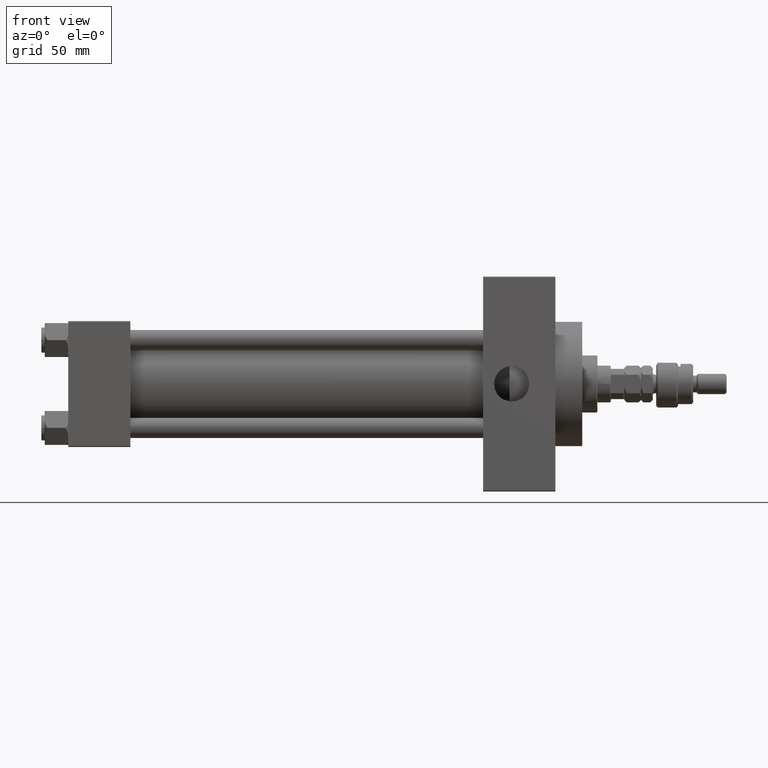
[diagram: clean part render]
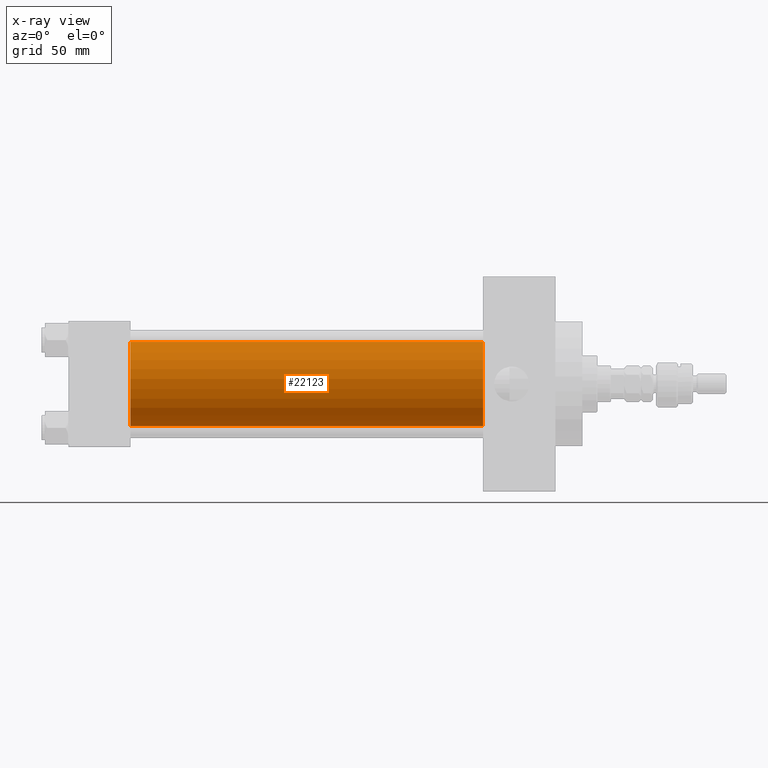
[diagram: x-ray — body ghosted, one internal face saturated and labeled with its STEP entity id]
A machine part, front view, then the same camera in x-ray: the body is ghosted and one INTERNAL B-rep face — a face not visible from any outside direction — is saturated and labeled: STEP entity #22123.
In plain terms, the highlighted cylindrical surface (partial cylindrical patch) has radius 25 mm, axis along (-1, -0, -0).
Its self-contained STEP definition (entity closure, byte-faithful):
#902 = VERTEX_POINT ( 'NONE', #38079 ) ;
#3272 = CARTESIAN_POINT ( 'NONE',  ( 37.00000000000000000, 4.595317839031724996E-16, -25.00000000000000000 ) ) ;
#4310 = LINE ( 'NONE', #28897, #35388 ) ;
#6537 = EDGE_CURVE ( 'NONE', #902, #26072, #9023, .T. ) ;
#8520 = AXIS2_PLACEMENT_3D ( 'NONE', #38954, #47695, #51662 ) ;
#9023 = CIRCLE ( 'NONE', #37656, 25.00000000000000000 ) ;
#13538 = CARTESIAN_POINT ( 'NONE',  ( 247.0000000000000000, 4.595317839031724996E-16, -25.00000000000000000 ) ) ;
#13609 = DIRECTION ( 'NONE',  ( 0.000000000000000000, 0.000000000000000000, 1.000000000000000000 ) ) ;
#18106 = CARTESIAN_POINT ( 'NONE',  ( 247.0000000000000000, -2.602085213965210642E-15, 0.000000000000000000 ) ) ;
#22123 = ADVANCED_FACE ( 'NONE', ( #25242 ), #33964, .F. ) ;
#22994 = DIRECTION ( 'NONE',  ( -1.000000000000000000, -0.000000000000000000, -0.000000000000000000 ) ) ;
#25242 = FACE_OUTER_BOUND ( 'NONE', #33306, .T. ) ;
#25392 = CIRCLE ( 'NONE', #8520, 25.00000000000000000 ) ;
#26072 = VERTEX_POINT ( 'NONE', #3272 ) ;
#26120 = EDGE_CURVE ( 'NONE', #41013, #902, #4310, .T. ) ;
#28495 = CARTESIAN_POINT ( 'NONE',  ( 37.00000000000000000, -2.602085213965210642E-15, 0.000000000000000000 ) ) ;
#28844 = VECTOR ( 'NONE', #22994, 1000.000000000000000 ) ;
#28897 = CARTESIAN_POINT ( 'NONE',  ( 247.0000000000000000, -2.602085213965210642E-15, 25.00000000000000000 ) ) ;
#30642 = ORIENTED_EDGE ( 'NONE', *, *, #48451, .T. ) ;
#32879 = DIRECTION ( 'NONE',  ( -1.000000000000000000, -0.000000000000000000, -0.000000000000000000 ) ) ;
#33306 = EDGE_LOOP ( 'NONE', ( #48456, #30642, #37040, #40212 ) ) ;
#33675 = EDGE_CURVE ( 'NONE', #41013, #36235, #25392, .T. ) ;
#33964 = CYLINDRICAL_SURFACE ( 'NONE', #37762, 25.00000000000000000 ) ;
#35388 = VECTOR ( 'NONE', #32879, 1000.000000000000000 ) ;
#35432 = CARTESIAN_POINT ( 'NONE',  ( 247.0000000000000000, 4.595317839031724996E-16, -25.00000000000000000 ) ) ;
#36235 = VERTEX_POINT ( 'NONE', #13538 ) ;
#36723 = DIRECTION ( 'NONE',  ( 0.000000000000000000, 0.000000000000000000, -1.000000000000000000 ) ) ;
#37040 = ORIENTED_EDGE ( 'NONE', *, *, #6537, .F. ) ;
#37656 = AXIS2_PLACEMENT_3D ( 'NONE', #28495, #39913, #36723 ) ;
#37762 = AXIS2_PLACEMENT_3D ( 'NONE', #18106, #38472, #13609 ) ;
#38079 = CARTESIAN_POINT ( 'NONE',  ( 37.00000000000000000, -2.602085213965210642E-15, 25.00000000000000000 ) ) ;
#38472 = DIRECTION ( 'NONE',  ( -1.000000000000000000, -0.000000000000000000, -0.000000000000000000 ) ) ;
#38954 = CARTESIAN_POINT ( 'NONE',  ( 247.0000000000000000, -2.602085213965210642E-15, 0.000000000000000000 ) ) ;
#39913 = DIRECTION ( 'NONE',  ( 1.000000000000000000, 0.000000000000000000, 0.000000000000000000 ) ) ;
#40212 = ORIENTED_EDGE ( 'NONE', *, *, #26120, .F. ) ;
#41013 = VERTEX_POINT ( 'NONE', #51201 ) ;
#47695 = DIRECTION ( 'NONE',  ( 1.000000000000000000, 0.000000000000000000, 0.000000000000000000 ) ) ;
#48451 = EDGE_CURVE ( 'NONE', #36235, #26072, #51835, .T. ) ;
#48456 = ORIENTED_EDGE ( 'NONE', *, *, #33675, .T. ) ;
#51201 = CARTESIAN_POINT ( 'NONE',  ( 247.0000000000000000, -2.602085213965210642E-15, 25.00000000000000000 ) ) ;
#51662 = DIRECTION ( 'NONE',  ( 0.000000000000000000, 0.000000000000000000, -1.000000000000000000 ) ) ;
#51835 = LINE ( 'NONE', #35432, #28844 ) ;